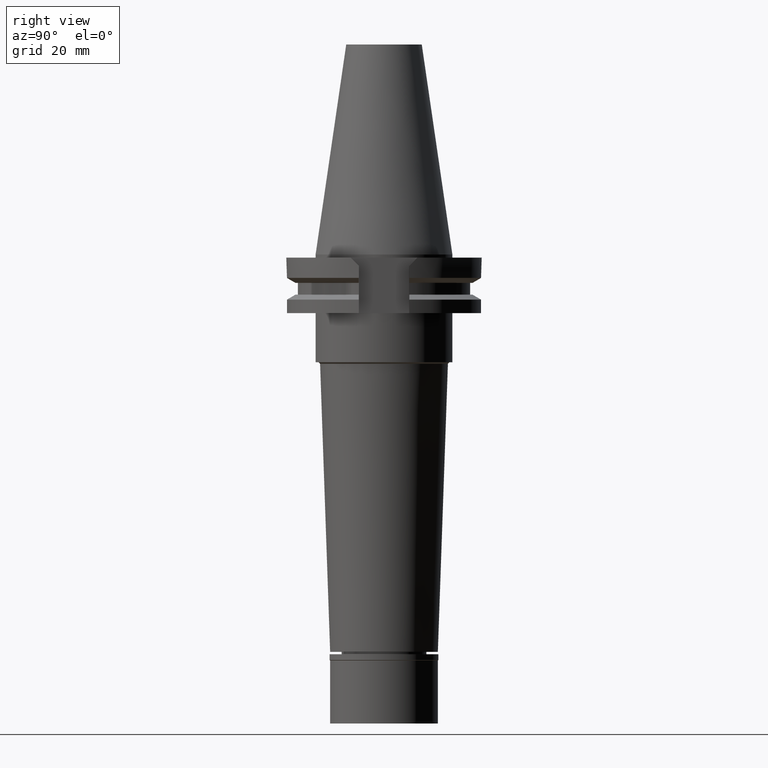
[diagram: clean part render]
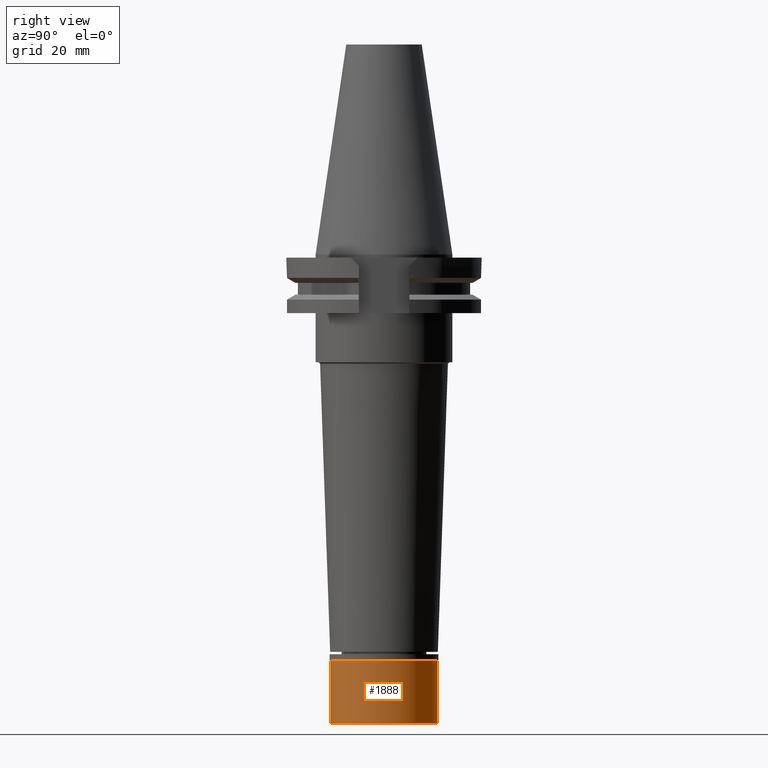
[diagram: same view with one face highlighted and labeled with its STEP entity id]
A machine part, right view. The second image highlights one B-rep face of the part: STEP entity #1888.
In plain terms, the highlighted cylindrical surface (partial cylindrical patch) has radius 17.5 mm, axis along (0, 0, -1).
Its self-contained STEP definition (entity closure, byte-faithful):
#280 = VERTEX_POINT ( 'NONE', #2906 ) ;
#281 = EDGE_CURVE ( 'NONE', #2912, #280, #319, .T. ) ;
#319 = LINE ( 'NONE', #2185, #2681 ) ;
#422 = ORIENTED_EDGE ( 'NONE', *, *, #1532, .T. ) ;
#452 = CARTESIAN_POINT ( 'NONE',  ( 0.0000000000000000000, 0.0000000000000000000, 0.0000000000000000000 ) ) ;
#457 = ORIENTED_EDGE ( 'NONE', *, *, #281, .F. ) ;
#498 = CARTESIAN_POINT ( 'NONE',  ( 0.0000000000000000000, -17.50000000000000000, -2.000000000000000000 ) ) ;
#773 = LINE ( 'NONE', #1247, #1195 ) ;
#812 = AXIS2_PLACEMENT_3D ( 'NONE', #2330, #3096, #1051 ) ;
#838 = CARTESIAN_POINT ( 'NONE',  ( 0.0000000000000000000, -17.50000000000000000, -22.50000000000000000 ) ) ;
#967 = CIRCLE ( 'NONE', #812, 17.50000000000000000 ) ;
#990 = CYLINDRICAL_SURFACE ( 'NONE', #2698, 17.50000000000000000 ) ;
#1051 = DIRECTION ( 'NONE',  ( 0.0000000000000000000, -1.000000000000000000, 0.0000000000000000000 ) ) ;
#1075 = CARTESIAN_POINT ( 'NONE',  ( 0.0000000000000000000, 0.0000000000000000000, -2.000000000000000000 ) ) ;
#1195 = VECTOR ( 'NONE', #1826, 1000.000000000000000 ) ;
#1247 = CARTESIAN_POINT ( 'NONE',  ( 0.0000000000000000000, -17.50000000000000000, -2.000000000000000000 ) ) ;
#1386 = DIRECTION ( 'NONE',  ( 0.0000000000000000000, 0.0000000000000000000, -1.000000000000000000 ) ) ;
#1435 = EDGE_LOOP ( 'NONE', ( #422, #1745, #2654, #457 ) ) ;
#1501 = DIRECTION ( 'NONE',  ( 0.0000000000000000000, 0.0000000000000000000, -1.000000000000000000 ) ) ;
#1532 = EDGE_CURVE ( 'NONE', #2912, #2721, #2171, .T. ) ;
#1745 = ORIENTED_EDGE ( 'NONE', *, *, #3287, .T. ) ;
#1826 = DIRECTION ( 'NONE',  ( 0.0000000000000000000, 0.0000000000000000000, -1.000000000000000000 ) ) ;
#1888 = ADVANCED_FACE ( 'NONE', ( #2307 ), #990, .T. ) ;
#2035 = VERTEX_POINT ( 'NONE', #838 ) ;
#2126 = DIRECTION ( 'NONE',  ( 0.0000000000000000000, 1.000000000000000000, 0.0000000000000000000 ) ) ;
#2154 = CARTESIAN_POINT ( 'NONE',  ( 0.0000000000000000000, 17.50000000000000000, -2.000000000000000000 ) ) ;
#2171 = CIRCLE ( 'NONE', #2273, 17.50000000000000000 ) ;
#2185 = CARTESIAN_POINT ( 'NONE',  ( 0.0000000000000000000, 17.50000000000000000, -2.000000000000000000 ) ) ;
#2243 = EDGE_CURVE ( 'NONE', #2035, #280, #967, .T. ) ;
#2273 = AXIS2_PLACEMENT_3D ( 'NONE', #1075, #2383, #2126 ) ;
#2307 = FACE_OUTER_BOUND ( 'NONE', #1435, .T. ) ;
#2330 = CARTESIAN_POINT ( 'NONE',  ( 0.0000000000000000000, 0.0000000000000000000, -22.50000000000000000 ) ) ;
#2383 = DIRECTION ( 'NONE',  ( 0.0000000000000000000, 0.0000000000000000000, -1.000000000000000000 ) ) ;
#2523 = DIRECTION ( 'NONE',  ( 0.0000000000000000000, -1.000000000000000000, 0.0000000000000000000 ) ) ;
#2654 = ORIENTED_EDGE ( 'NONE', *, *, #2243, .T. ) ;
#2681 = VECTOR ( 'NONE', #1386, 1000.000000000000000 ) ;
#2698 = AXIS2_PLACEMENT_3D ( 'NONE', #452, #1501, #2523 ) ;
#2721 = VERTEX_POINT ( 'NONE', #498 ) ;
#2906 = CARTESIAN_POINT ( 'NONE',  ( 0.0000000000000000000, 17.50000000000000000, -22.50000000000000000 ) ) ;
#2912 = VERTEX_POINT ( 'NONE', #2154 ) ;
#3096 = DIRECTION ( 'NONE',  ( 0.0000000000000000000, 0.0000000000000000000, 1.000000000000000000 ) ) ;
#3287 = EDGE_CURVE ( 'NONE', #2721, #2035, #773, .T. ) ;